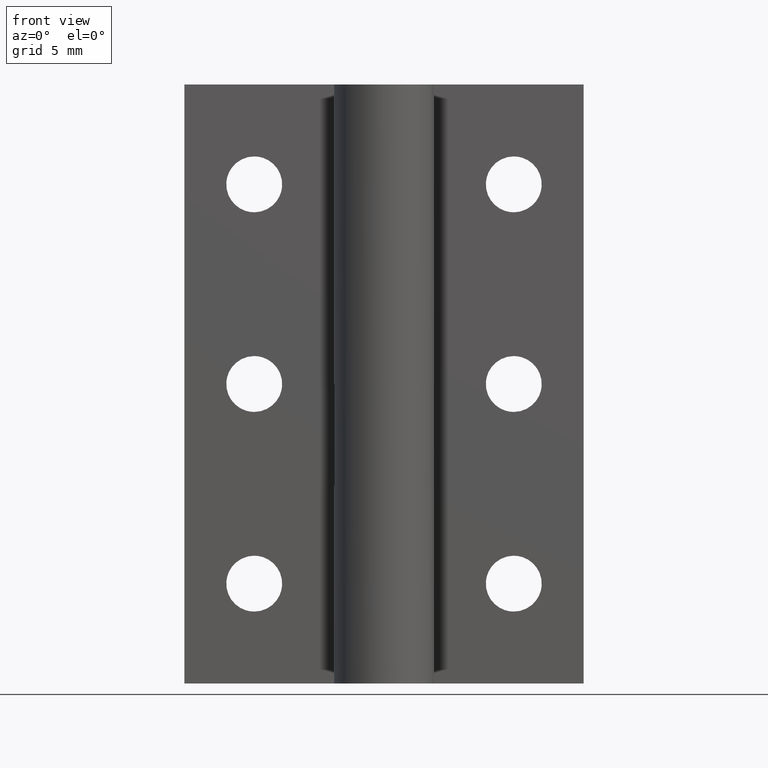
[diagram: clean part render]
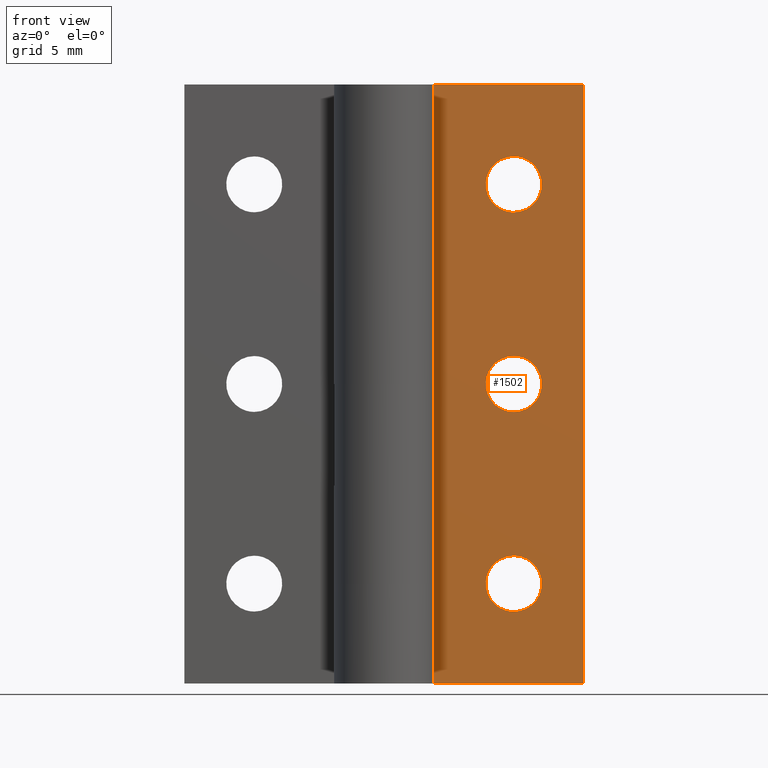
[diagram: same view with one face highlighted and labeled with its STEP entity id]
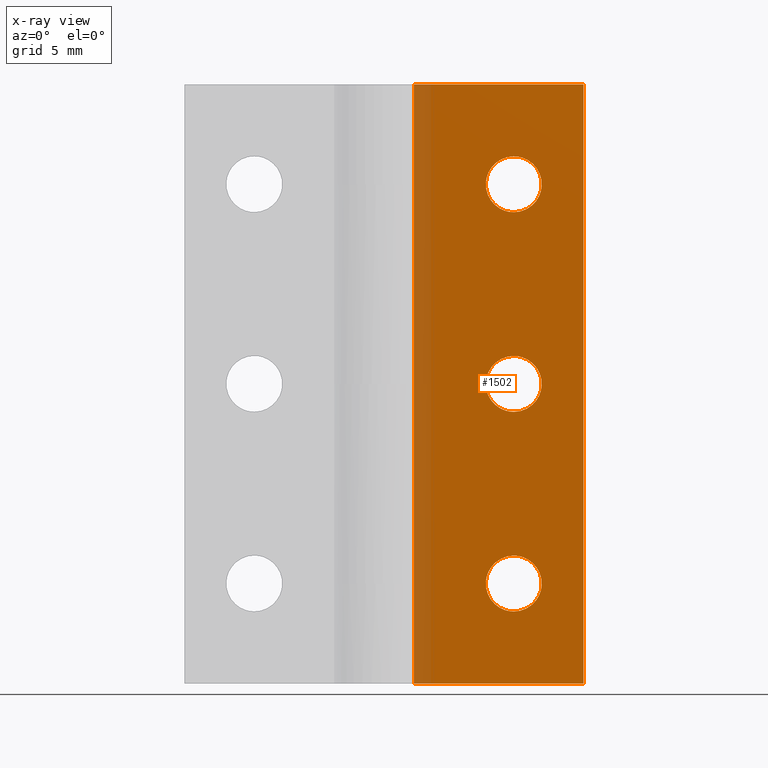
[diagram: x-ray of the same camera — body ghosted, the highlighted face saturated]
A machine part, front view. The second image highlights one B-rep face of the part: STEP entity #1502.
The next image is the same camera in x-ray: the body ghosted, the highlighted face saturated — about 11% of this face is hidden behind the body in this view.
In plain terms, the highlighted face is a freeform B-spline surface patch.
Its self-contained STEP definition (entity closure, byte-faithful):
#313=CARTESIAN_POINT('',(6.500000000000000,3.0,26.399999999999999));
#314=VERTEX_POINT('',#313);
#315=CARTESIAN_POINT('',(5.104315732780123,3.0,25.109842734101591));
#316=VERTEX_POINT('',#315);
#317=CARTESIAN_POINT('',(6.500000000000000,3.0,26.399999999999999));
#318=CARTESIAN_POINT('',(5.205853311832184,3.000000000000001,26.400000000000006));
#319=CARTESIAN_POINT('',(5.104315732780123,3.000000000000000,25.109842734101587));
#327=(BOUNDED_CURVE()B_SPLINE_CURVE(2,(#317,#318,#319),.UNSPECIFIED.,.F.,.U.)B_SPLINE_CURVE_WITH_KNOTS((3,3),(0.0,0.236331300612474),.UNSPECIFIED.)CURVE()GEOMETRIC_REPRESENTATION_ITEM()RATIONAL_B_SPLINE_CURVE((1.0,0.723120658628971,0.969723356129465))REPRESENTATION_ITEM(''));
#328=EDGE_CURVE('',#314,#316,#327,.T.);
#369=CARTESIAN_POINT('',(7.895684267219878,3.0,24.890157265898409));
#370=VERTEX_POINT('',#369);
#376=CARTESIAN_POINT('',(7.895684267219878,3.000000000000000,24.890157265898409));
#377=CARTESIAN_POINT('',(7.900000000000000,3.000000000000000,24.944993850106268));
#378=CARTESIAN_POINT('',(7.900000000000000,3.0,25.0));
#379=CARTESIAN_POINT('',(7.899999999999999,3.000000000000000,26.399999999999995));
#380=CARTESIAN_POINT('',(6.500000000000000,3.0,26.399999999999999));
#388=(BOUNDED_CURVE()B_SPLINE_CURVE(2,(#376,#377,#378,#379,#380),.UNSPECIFIED.,.F.,.U.)B_SPLINE_CURVE_WITH_KNOTS((3,2,3),(0.736331300612474,0.750000000000000,1.0),.UNSPECIFIED.)CURVE()GEOMETRIC_REPRESENTATION_ITEM()RATIONAL_B_SPLINE_CURVE((0.969723356129465,0.983986122557576,1.0,0.707106781186547,1.0))REPRESENTATION_ITEM(''));
#389=EDGE_CURVE('',#370,#314,#388,.T.);
#412=CARTESIAN_POINT('',(6.500000000000000,3.0,23.600000000000001));
#413=VERTEX_POINT('',#412);
#414=CARTESIAN_POINT('',(5.104315732780123,3.000000000000000,25.109842734101591));
#415=CARTESIAN_POINT('',(5.100000000000000,2.999999999999999,25.055006149893732));
#416=CARTESIAN_POINT('',(5.100000000000000,3.0,25.0));
#417=CARTESIAN_POINT('',(5.100000000000000,3.000000000000000,23.600000000000001));
#418=CARTESIAN_POINT('',(6.500000000000000,3.0,23.600000000000001));
#426=(BOUNDED_CURVE()B_SPLINE_CURVE(2,(#414,#415,#416,#417,#418),.UNSPECIFIED.,.F.,.U.)B_SPLINE_CURVE_WITH_KNOTS((3,2,3),(0.236331300612474,0.250000000000000,0.500000000000000),.UNSPECIFIED.)CURVE()GEOMETRIC_REPRESENTATION_ITEM()RATIONAL_B_SPLINE_CURVE((0.969723356129465,0.983986122557576,1.0,0.707106781186547,1.0))REPRESENTATION_ITEM(''));
#427=EDGE_CURVE('',#316,#413,#426,.T.);
#429=CARTESIAN_POINT('',(6.500000000000000,3.0,23.600000000000001));
#430=CARTESIAN_POINT('',(7.794146688167812,3.0,23.599999999999998));
#431=CARTESIAN_POINT('',(7.895684267219878,3.000000000000000,24.890157265898409));
#439=(BOUNDED_CURVE()B_SPLINE_CURVE(2,(#429,#430,#431),.UNSPECIFIED.,.F.,.U.)B_SPLINE_CURVE_WITH_KNOTS((3,3),(0.500000000000000,0.736331300612473),.UNSPECIFIED.)CURVE()GEOMETRIC_REPRESENTATION_ITEM()RATIONAL_B_SPLINE_CURVE((1.0,0.723120658628972,0.969723356129464))REPRESENTATION_ITEM(''));
#440=EDGE_CURVE('',#413,#370,#439,.T.);
#495=CARTESIAN_POINT('',(6.500000000000000,3.0,16.399999999999999));
#496=VERTEX_POINT('',#495);
#497=CARTESIAN_POINT('',(5.104315732780123,3.0,15.109842734101591));
#498=VERTEX_POINT('',#497);
#499=CARTESIAN_POINT('',(6.500000000000000,3.0,16.399999999999999));
#500=CARTESIAN_POINT('',(5.205853311832184,3.000000000000000,16.399999999999999));
#501=CARTESIAN_POINT('',(5.104315732780123,3.000000000000000,15.109842734101596));
#509=(BOUNDED_CURVE()B_SPLINE_CURVE(2,(#499,#500,#501),.UNSPECIFIED.,.F.,.U.)B_SPLINE_CURVE_WITH_KNOTS((3,3),(0.0,0.236331300612474),.UNSPECIFIED.)CURVE()GEOMETRIC_REPRESENTATION_ITEM()RATIONAL_B_SPLINE_CURVE((1.0,0.723120658628971,0.969723356129466))REPRESENTATION_ITEM(''));
#510=EDGE_CURVE('',#496,#498,#509,.T.);
#551=CARTESIAN_POINT('',(7.895684267219878,3.0,14.890157265898409));
#552=VERTEX_POINT('',#551);
#558=CARTESIAN_POINT('',(7.895684267219878,3.000000000000000,14.890157265898408));
#559=CARTESIAN_POINT('',(7.900000000000000,3.000000000000000,14.944993850106275));
#560=CARTESIAN_POINT('',(7.900000000000000,3.0,15.0));
#561=CARTESIAN_POINT('',(7.899999999999999,3.000000000000000,16.400000000000002));
#562=CARTESIAN_POINT('',(6.500000000000000,3.0,16.399999999999999));
#570=(BOUNDED_CURVE()B_SPLINE_CURVE(2,(#558,#559,#560,#561,#562),.UNSPECIFIED.,.F.,.U.)B_SPLINE_CURVE_WITH_KNOTS((3,2,3),(0.736331300612474,0.750000000000000,1.0),.UNSPECIFIED.)CURVE()GEOMETRIC_REPRESENTATION_ITEM()RATIONAL_B_SPLINE_CURVE((0.969723356129466,0.983986122557576,1.0,0.707106781186547,1.0))REPRESENTATION_ITEM(''));
#571=EDGE_CURVE('',#552,#496,#570,.T.);
#594=CARTESIAN_POINT('',(6.500000000000000,3.0,13.600000000000000));
#595=VERTEX_POINT('',#594);
#596=CARTESIAN_POINT('',(5.104315732780123,3.000000000000000,15.109842734101596));
#597=CARTESIAN_POINT('',(5.100000000000001,3.000000000000001,15.055006149893726));
#598=CARTESIAN_POINT('',(5.100000000000000,3.0,15.0));
#599=CARTESIAN_POINT('',(5.100000000000000,3.000000000000000,13.600000000000001));
#600=CARTESIAN_POINT('',(6.500000000000000,3.0,13.600000000000000));
#608=(BOUNDED_CURVE()B_SPLINE_CURVE(2,(#596,#597,#598,#599,#600),.UNSPECIFIED.,.F.,.U.)B_SPLINE_CURVE_WITH_KNOTS((3,2,3),(0.236331300612474,0.250000000000000,0.500000000000000),.UNSPECIFIED.)CURVE()GEOMETRIC_REPRESENTATION_ITEM()RATIONAL_B_SPLINE_CURVE((0.969723356129466,0.983986122557576,1.0,0.707106781186547,1.0))REPRESENTATION_ITEM(''));
#609=EDGE_CURVE('',#498,#595,#608,.T.);
#611=CARTESIAN_POINT('',(6.500000000000000,3.0,13.600000000000000));
#612=CARTESIAN_POINT('',(7.794146688167812,3.0,13.600000000000000));
#613=CARTESIAN_POINT('',(7.895684267219878,3.000000000000000,14.890157265898413));
#621=(BOUNDED_CURVE()B_SPLINE_CURVE(2,(#611,#612,#613),.UNSPECIFIED.,.F.,.U.)B_SPLINE_CURVE_WITH_KNOTS((3,3),(0.500000000000000,0.736331300612473),.UNSPECIFIED.)CURVE()GEOMETRIC_REPRESENTATION_ITEM()RATIONAL_B_SPLINE_CURVE((1.0,0.723120658628972,0.969723356129464))REPRESENTATION_ITEM(''));
#622=EDGE_CURVE('',#595,#552,#621,.T.);
#677=CARTESIAN_POINT('',(6.500000000000000,3.0,6.400000000000000));
#678=VERTEX_POINT('',#677);
#679=CARTESIAN_POINT('',(5.104315732780123,3.0,5.109842734101593));
#680=VERTEX_POINT('',#679);
#681=CARTESIAN_POINT('',(6.500000000000000,3.0,6.400000000000000));
#682=CARTESIAN_POINT('',(5.205853311832184,3.000000000000000,6.400000000000000));
#683=CARTESIAN_POINT('',(5.104315732780123,3.000000000000000,5.109842734101594));
#691=(BOUNDED_CURVE()B_SPLINE_CURVE(2,(#681,#682,#683),.UNSPECIFIED.,.F.,.U.)B_SPLINE_CURVE_WITH_KNOTS((3,3),(0.0,0.236331300612474),.UNSPECIFIED.)CURVE()GEOMETRIC_REPRESENTATION_ITEM()RATIONAL_B_SPLINE_CURVE((1.0,0.723120658628971,0.969723356129466))REPRESENTATION_ITEM(''));
#692=EDGE_CURVE('',#678,#680,#691,.T.);
#733=CARTESIAN_POINT('',(7.895684267219878,3.0,4.890157265898408));
#734=VERTEX_POINT('',#733);
#740=CARTESIAN_POINT('',(7.895684267219878,3.0,4.890157265898408));
#741=CARTESIAN_POINT('',(7.900000000000000,3.000000000000001,4.944993850106269));
#742=CARTESIAN_POINT('',(7.900000000000000,3.0,5.0));
#743=CARTESIAN_POINT('',(7.899999999999999,3.000000000000000,6.400000000000000));
#744=CARTESIAN_POINT('',(6.500000000000000,3.0,6.400000000000000));
#752=(BOUNDED_CURVE()B_SPLINE_CURVE(2,(#740,#741,#742,#743,#744),.UNSPECIFIED.,.F.,.U.)B_SPLINE_CURVE_WITH_KNOTS((3,2,3),(0.736331300612474,0.750000000000000,1.0),.UNSPECIFIED.)CURVE()GEOMETRIC_REPRESENTATION_ITEM()RATIONAL_B_SPLINE_CURVE((0.969723356129466,0.983986122557576,1.0,0.707106781186547,1.0))REPRESENTATION_ITEM(''));
#753=EDGE_CURVE('',#734,#678,#752,.T.);
#776=CARTESIAN_POINT('',(6.500000000000000,3.0,3.600000000000000));
#777=VERTEX_POINT('',#776);
#778=CARTESIAN_POINT('',(5.104315732780123,3.000000000000000,5.109842734101593));
#779=CARTESIAN_POINT('',(5.100000000000001,3.0,5.055006149893731));
#780=CARTESIAN_POINT('',(5.100000000000000,3.0,5.0));
#781=CARTESIAN_POINT('',(5.100000000000000,3.000000000000000,3.600000000000000));
#782=CARTESIAN_POINT('',(6.500000000000000,3.0,3.600000000000000));
#790=(BOUNDED_CURVE()B_SPLINE_CURVE(2,(#778,#779,#780,#781,#782),.UNSPECIFIED.,.F.,.U.)B_SPLINE_CURVE_WITH_KNOTS((3,2,3),(0.236331300612474,0.250000000000000,0.500000000000000),.UNSPECIFIED.)CURVE()GEOMETRIC_REPRESENTATION_ITEM()RATIONAL_B_SPLINE_CURVE((0.969723356129465,0.983986122557576,1.0,0.707106781186547,1.0))REPRESENTATION_ITEM(''));
#791=EDGE_CURVE('',#680,#777,#790,.T.);
#793=CARTESIAN_POINT('',(6.500000000000000,3.0,3.600000000000000));
#794=CARTESIAN_POINT('',(7.794146688167812,3.0,3.600000000000000));
#795=CARTESIAN_POINT('',(7.895684267219878,3.000000000000000,4.890157265898408));
#803=(BOUNDED_CURVE()B_SPLINE_CURVE(2,(#793,#794,#795),.UNSPECIFIED.,.F.,.U.)B_SPLINE_CURVE_WITH_KNOTS((3,3),(0.500000000000000,0.736331300612473),.UNSPECIFIED.)CURVE()GEOMETRIC_REPRESENTATION_ITEM()RATIONAL_B_SPLINE_CURVE((1.0,0.723120658628972,0.969723356129464))REPRESENTATION_ITEM(''));
#804=EDGE_CURVE('',#777,#734,#803,.T.);
#897=CARTESIAN_POINT('',(1.499999999999900,3.0,25.0));
#898=VERTEX_POINT('',#897);
#941=CARTESIAN_POINT('',(1.499999999999900,3.0,30.0));
#942=VERTEX_POINT('',#941);
#954=CARTESIAN_POINT('',(1.499999999999900,3.0,30.0));
#955=CARTESIAN_POINT('',(1.499999999999900,3.0,25.0));
#956=QUASI_UNIFORM_CURVE('',1,(#954,#955),.UNSPECIFIED.,.F.,.U.);
#957=EDGE_CURVE('',#942,#898,#956,.T.);
#1018=CARTESIAN_POINT('',(1.499999999999900,3.0,5.0));
#1019=VERTEX_POINT('',#1018);
#1105=CARTESIAN_POINT('',(1.499999999999900,3.0,15.0));
#1106=VERTEX_POINT('',#1105);
#1160=CARTESIAN_POINT('',(1.499999999999900,3.0,15.0));
#1161=CARTESIAN_POINT('',(1.499999999999900,3.0,5.0));
#1162=QUASI_UNIFORM_CURVE('',1,(#1160,#1161),.UNSPECIFIED.,.F.,.U.);
#1163=EDGE_CURVE('',#1106,#1019,#1162,.T.);
#1233=CARTESIAN_POINT('',(10.0,3.0,0.0));
#1234=VERTEX_POINT('',#1233);
#1240=CARTESIAN_POINT('',(1.499999999999900,3.0,0.0));
#1241=VERTEX_POINT('',#1240);
#1242=CARTESIAN_POINT('',(1.499999999999900,3.0,0.0));
#1243=CARTESIAN_POINT('',(10.0,3.0,0.0));
#1244=QUASI_UNIFORM_CURVE('',1,(#1242,#1243),.UNSPECIFIED.,.F.,.U.);
#1245=EDGE_CURVE('',#1241,#1234,#1244,.T.);
#1317=CARTESIAN_POINT('',(10.0,3.0,30.0));
#1318=VERTEX_POINT('',#1317);
#1319=CARTESIAN_POINT('',(1.499999999999900,3.0,30.0));
#1320=CARTESIAN_POINT('',(10.0,3.0,30.0));
#1321=QUASI_UNIFORM_CURVE('',1,(#1319,#1320),.UNSPECIFIED.,.F.,.U.);
#1322=EDGE_CURVE('',#942,#1318,#1321,.T.);
#1337=CARTESIAN_POINT('',(1.499999999999900,3.0,5.0));
#1338=CARTESIAN_POINT('',(1.499999999999900,3.0,0.0));
#1339=QUASI_UNIFORM_CURVE('',1,(#1337,#1338),.UNSPECIFIED.,.F.,.U.);
#1340=EDGE_CURVE('',#1019,#1241,#1339,.T.);
#1458=CARTESIAN_POINT('',(10.0,3.0,30.0));
#1459=CARTESIAN_POINT('',(10.0,3.0,0.0));
#1460=QUASI_UNIFORM_CURVE('',1,(#1458,#1459),.UNSPECIFIED.,.F.,.U.);
#1461=EDGE_CURVE('',#1318,#1234,#1460,.T.);
#1466=CARTESIAN_POINT('',(1.075425016474545,3.0,-1.498499941854179));
#1467=CARTESIAN_POINT('',(1.075425016474545,3.0,31.498500746516889));
#1468=CARTESIAN_POINT('',(10.424575211513121,3.0,-1.498499941854179));
#1469=CARTESIAN_POINT('',(10.424575211513121,3.0,31.498500746516889));
#1470=B_SPLINE_SURFACE_WITH_KNOTS('',1,1,((#1466,#1468),(#1467,#1469)),.UNSPECIFIED.,.F.,.F.,.U.,(2,2),(2,2),(0.0,32.997000688371067),(0.0,9.349150195038575),.UNSPECIFIED.);
#1471=ORIENTED_EDGE('',*,*,#1245,.T.);
#1472=ORIENTED_EDGE('',*,*,#1461,.F.);
#1473=ORIENTED_EDGE('',*,*,#1322,.F.);
#1474=ORIENTED_EDGE('',*,*,#957,.T.);
#1475=CARTESIAN_POINT('',(1.499999999999900,3.0,25.0));
#1476=CARTESIAN_POINT('',(1.499999999999900,3.0,15.0));
#1477=QUASI_UNIFORM_CURVE('',1,(#1475,#1476),.UNSPECIFIED.,.F.,.U.);
#1478=EDGE_CURVE('',#898,#1106,#1477,.T.);
#1479=ORIENTED_EDGE('',*,*,#1478,.T.);
#1480=ORIENTED_EDGE('',*,*,#1163,.T.);
#1481=ORIENTED_EDGE('',*,*,#1340,.T.);
#1482=EDGE_LOOP('',(#1471,#1472,#1473,#1474,#1479,#1480,#1481));
#1483=FACE_OUTER_BOUND('',#1482,.T.);
#1484=ORIENTED_EDGE('',*,*,#804,.F.);
#1485=ORIENTED_EDGE('',*,*,#791,.F.);
#1486=ORIENTED_EDGE('',*,*,#692,.F.);
#1487=ORIENTED_EDGE('',*,*,#753,.F.);
#1488=EDGE_LOOP('',(#1484,#1485,#1486,#1487));
#1489=FACE_BOUND('',#1488,.T.);
#1490=ORIENTED_EDGE('',*,*,#622,.F.);
#1491=ORIENTED_EDGE('',*,*,#609,.F.);
#1492=ORIENTED_EDGE('',*,*,#510,.F.);
#1493=ORIENTED_EDGE('',*,*,#571,.F.);
#1494=EDGE_LOOP('',(#1490,#1491,#1492,#1493));
#1495=FACE_BOUND('',#1494,.T.);
#1496=ORIENTED_EDGE('',*,*,#440,.F.);
#1497=ORIENTED_EDGE('',*,*,#427,.F.);
#1498=ORIENTED_EDGE('',*,*,#328,.F.);
#1499=ORIENTED_EDGE('',*,*,#389,.F.);
#1500=EDGE_LOOP('',(#1496,#1497,#1498,#1499));
#1501=FACE_BOUND('',#1500,.T.);
#1502=ADVANCED_FACE('',(#1483,#1489,#1495,#1501),#1470,.F.);